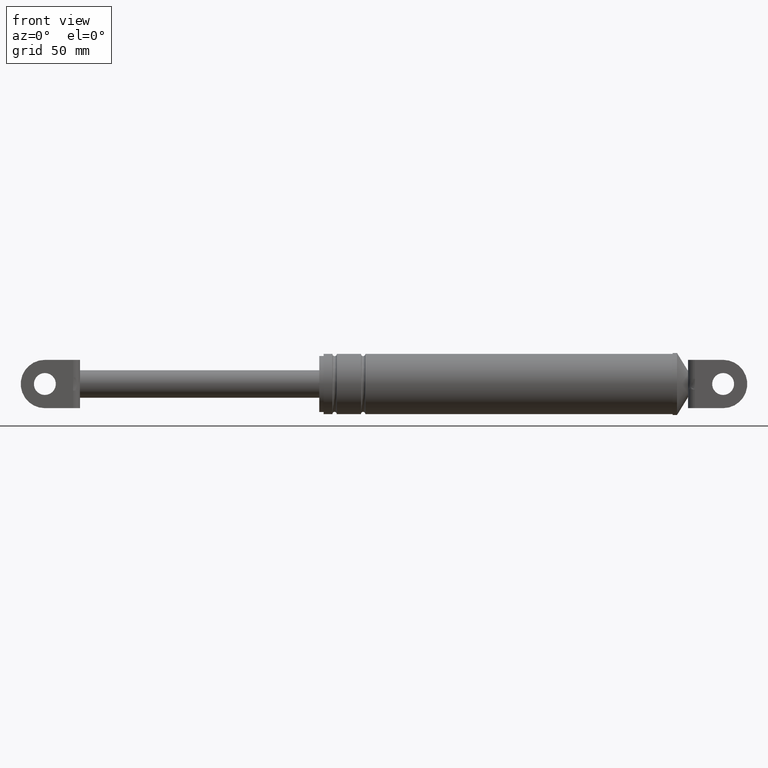
[diagram: clean part render]
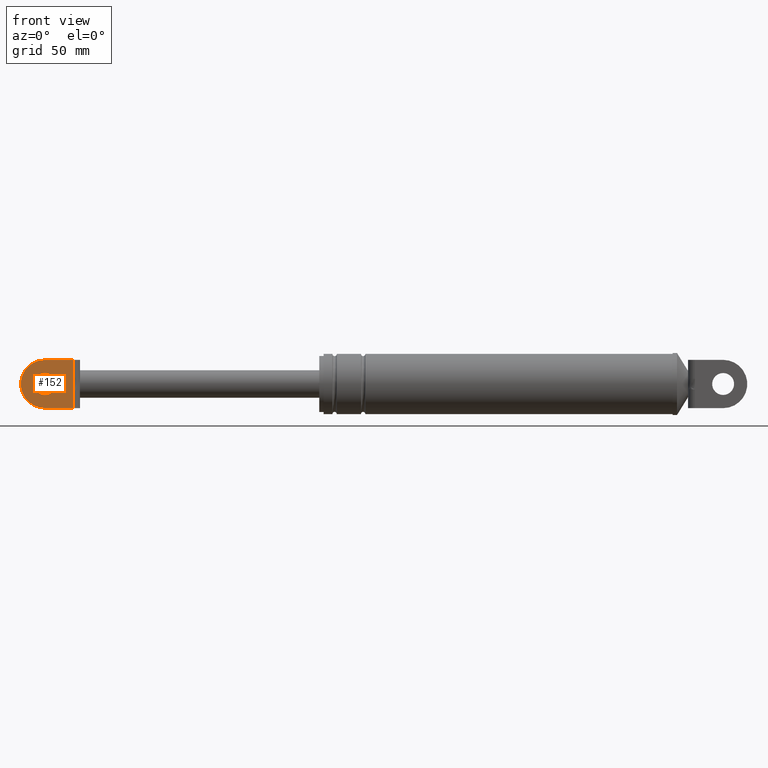
[diagram: same view with one face highlighted and labeled with its STEP entity id]
A machine part, front view. The second image highlights one B-rep face of the part: STEP entity #152.
In plain terms, the highlighted planar face has unit normal (0, -1, 0).
Its self-contained STEP definition (entity closure, byte-faithful):
#152=ADVANCED_FACE('',(#583,#584),#582,.T.);
#582=PLANE('',#1223);
#583=FACE_OUTER_BOUND('',#1224,.T.);
#584=FACE_BOUND('',#1225,.T.);
#1220=CARTESIAN_POINT('',(5.28862799120E+001,-8.69999700000E+000,1.92644335058E+002));
#1221=DIRECTION('',(0.00000000000E+000,-1.00000000000E+000,0.00000000000E+000));
#1222=DIRECTION('',(0.00000000000E+000,0.00000000000E+000,-1.00000000000E+000));
#1223=AXIS2_PLACEMENT_3D('',#1220,#1221,#1222);
#1224=EDGE_LOOP('',(#1584,#1585,#1586,#1587,#1588,#1589));
#1225=EDGE_LOOP('',(#1590,#1591));
#1584=ORIENTED_EDGE('',*,*,#1802,.F.);
#1585=ORIENTED_EDGE('',*,*,#1803,.T.);
#1586=ORIENTED_EDGE('',*,*,#1804,.T.);
#1587=ORIENTED_EDGE('',*,*,#1805,.T.);
#1588=ORIENTED_EDGE('',*,*,#1806,.T.);
#1589=ORIENTED_EDGE('',*,*,#1807,.T.);
#1590=ORIENTED_EDGE('',*,*,#1808,.F.);
#1591=ORIENTED_EDGE('',*,*,#1809,.F.);
#1802=EDGE_CURVE('',#2486,#2487,#2488,.T.);
#1803=EDGE_CURVE('',#2486,#2494,#2495,.T.);
#1804=EDGE_CURVE('',#2494,#2501,#2502,.T.);
#1805=EDGE_CURVE('',#2501,#2508,#2509,.T.);
#1806=EDGE_CURVE('',#2508,#2515,#2516,.T.);
#1807=EDGE_CURVE('',#2515,#2487,#2522,.T.);
#1808=EDGE_CURVE('',#2528,#2529,#2530,.T.);
#1809=EDGE_CURVE('',#2529,#2528,#2536,.T.);
#2486=VERTEX_POINT('',#3294);
#2487=VERTEX_POINT('',#3295);
#2488=LINE('',#3296,#3297);
#2494=VERTEX_POINT('',#3299);
#2495=LINE('',#3300,#3301);
#2501=VERTEX_POINT('',#3303);
#2502=(BOUNDED_CURVE() B_SPLINE_CURVE(3,(#3304,#3305,#3306,#3307,#3308,#3309,#3310,#3311,#3312,#3313),.UNSPECIFIED.,.F.,.F.) B_SPLINE_CURVE_WITH_KNOTS((4,2,2,2,4),(0.00000000000E+000,1.48458878572E-003,2.96917757145E-003,4.45376635717E-003,5.93835514290E-003),.UNSPECIFIED.) CURVE() GEOMETRIC_REPRESENTATION_ITEM() RATIONAL_B_SPLINE_CURVE((1.00000000000E+000,1.00000000000E+000,1.00000000000E+000,1.00000000000E+000,1.00000000000E+000,1.00000000000E+000,1.00000000000E+000,1.00000000000E+000,1.00000000000E+000,1.00000000000E+000)) REPRESENTATION_ITEM('') );
#2508=VERTEX_POINT('',#3314);
#2509=LINE('',#3315,#3316);
#2515=VERTEX_POINT('',#3318);
#2516=LINE('',#3319,#3320);
#2522=CIRCLE('',#3325,1.10000000000E+001);
#2528=VERTEX_POINT('',#3326);
#2529=VERTEX_POINT('',#3327);
#2530=CIRCLE('',#3331,5.00000000000E+000);
#2536=CIRCLE('',#3335,5.00000000000E+000);
#3294=CARTESIAN_POINT('',(7.90751961537E+001,-8.69999700000E+000,1.68444335058E+002));
#3295=CARTESIAN_POINT('',(6.62751951938E+001,-8.69999700000E+000,1.68444335058E+002));
#3296=CARTESIAN_POINT('',(7.90751961537E+001,-8.69999700000E+000,1.68444335058E+002));
#3297=VECTOR('',#3298,1.28000009599E+001);
#3298=DIRECTION('',(-1.00000000000E+000,0.00000000000E+000,0.00000000000E+000));
#3299=CARTESIAN_POINT('',(7.90751961537E+001,-8.69999700000E+000,1.76475743978E+002));
#3300=CARTESIAN_POINT('',(7.90751961537E+001,-8.69999700000E+000,1.68444335058E+002));
#3301=VECTOR('',#3302,8.03140892004E+000);
#3302=DIRECTION('',(0.00000000000E+000,0.00000000000E+000,1.00000000000E+000));
#3303=CARTESIAN_POINT('',(7.90751961537E+001,-8.69999700000E+000,1.82412926138E+002));
#3304=CARTESIAN_POINT('',(7.90751961537E+001,-8.69999700000E+000,1.76475743978E+002));
#3305=CARTESIAN_POINT('',(7.90751961537E+001,-8.69999700000E+000,1.76970607099E+002));
#3306=CARTESIAN_POINT('',(7.91007359111E+001,-8.69999700000E+000,1.77464913581E+002));
#3307=CARTESIAN_POINT('',(7.91459590495E+001,-8.69999700000E+000,1.78453625055E+002));
#3308=CARTESIAN_POINT('',(7.91642990084E+001,-8.69999700000E+000,1.78948080320E+002));
#3309=CARTESIAN_POINT('',(7.91643585709E+001,-8.69999700000E+000,1.79937844101E+002));
#3310=CARTESIAN_POINT('',(7.91460439493E+001,-8.69999700000E+000,1.80433081075E+002));
#3311=CARTESIAN_POINT('',(7.91007906818E+001,-8.69999700000E+000,1.81422666580E+002));
#3312=CARTESIAN_POINT('',(7.90751961537E+001,-8.69999700000E+000,1.81917357571E+002));
#3313=CARTESIAN_POINT('',(7.90751961537E+001,-8.69999700000E+000,1.82412926138E+002));
#3314=CARTESIAN_POINT('',(7.90751961537E+001,-8.69999700000E+000,1.90444335058E+002));
#3315=CARTESIAN_POINT('',(7.90751961537E+001,-8.69999700000E+000,1.82412926138E+002));
#3316=VECTOR('',#3317,8.03140892004E+000);
#3317=DIRECTION('',(0.00000000000E+000,0.00000000000E+000,1.00000000000E+000));
#3318=CARTESIAN_POINT('',(6.62751951938E+001,-8.69999700000E+000,1.90444335058E+002));
#3319=CARTESIAN_POINT('',(7.90751961537E+001,-8.69999700000E+000,1.90444335058E+002));
#3320=VECTOR('',#3321,1.28000009599E+001);
#3321=DIRECTION('',(-1.00000000000E+000,0.00000000000E+000,0.00000000000E+000));
#3322=CARTESIAN_POINT('',(6.62751961537E+001,-8.69999700000E+000,1.79444335058E+002));
#3323=DIRECTION('',(0.00000000000E+000,-1.00000000000E+000,0.00000000000E+000));
#3324=DIRECTION('',(-0.00000000000E+000,-0.00000000000E+000,-1.00000000000E+000));
#3325=AXIS2_PLACEMENT_3D('',#3322,#3323,#3324);
#3326=CARTESIAN_POINT('',(6.62751961537E+001,-8.69999700000E+000,1.74444335058E+002));
#3327=CARTESIAN_POINT('',(6.62751961537E+001,-8.69999700000E+000,1.84444335058E+002));
#3328=CARTESIAN_POINT('',(6.62751961537E+001,-8.69999700000E+000,1.79444335058E+002));
#3329=DIRECTION('',(-0.00000000000E+000,-1.00000000000E+000,0.00000000000E+000));
#3330=DIRECTION('',(-1.22460635382E-016,0.00000000000E+000,1.00000000000E+000));
#3331=AXIS2_PLACEMENT_3D('',#3328,#3329,#3330);
#3332=CARTESIAN_POINT('',(6.62751961537E+001,-8.69999700000E+000,1.79444335058E+002));
#3333=DIRECTION('',(-0.00000000000E+000,-1.00000000000E+000,0.00000000000E+000));
#3334=DIRECTION('',(-1.22460635382E-016,0.00000000000E+000,1.00000000000E+000));
#3335=AXIS2_PLACEMENT_3D('',#3332,#3333,#3334);